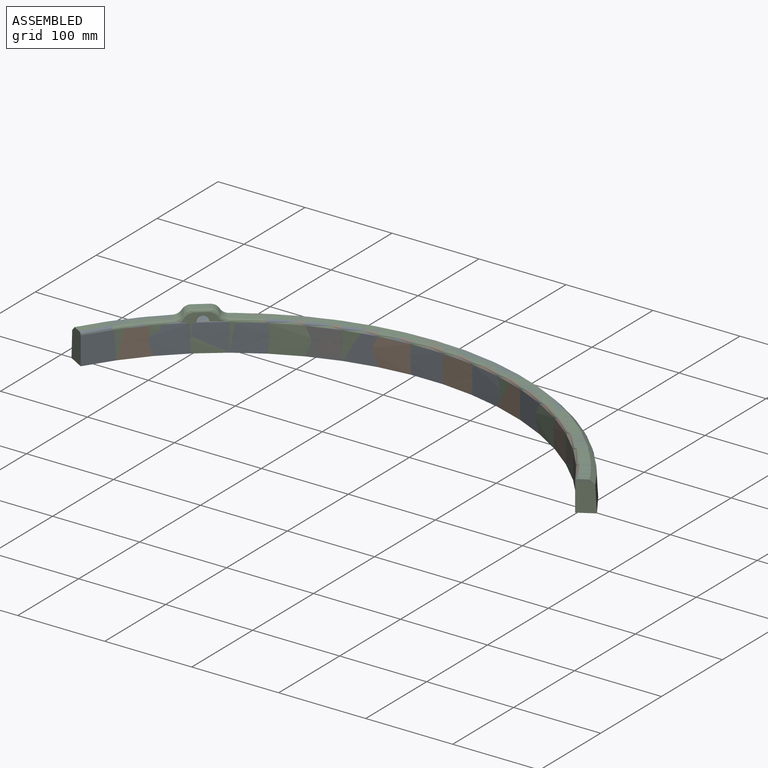
[diagram: assembled view]
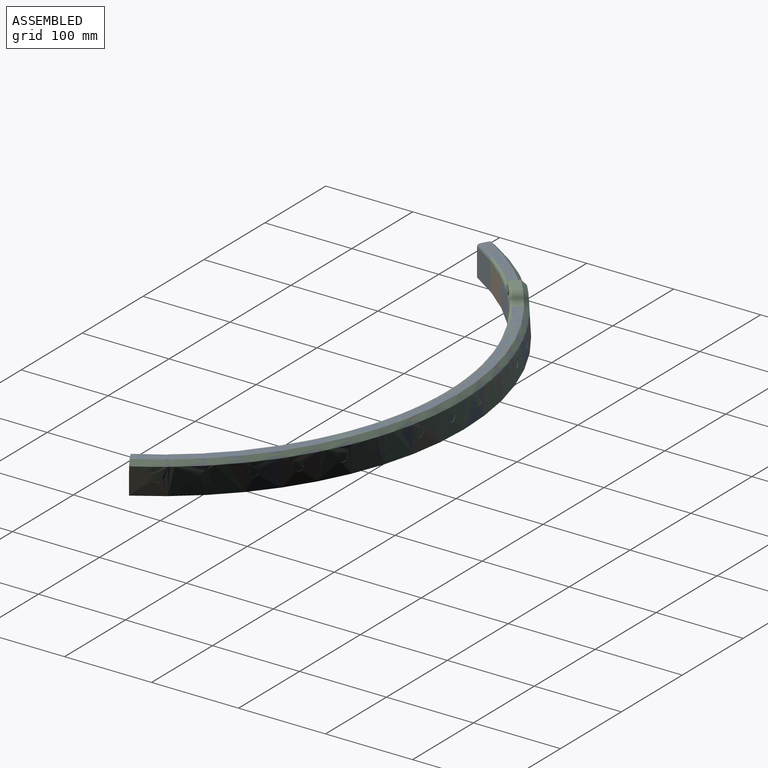
[diagram: assembled view, second angle]
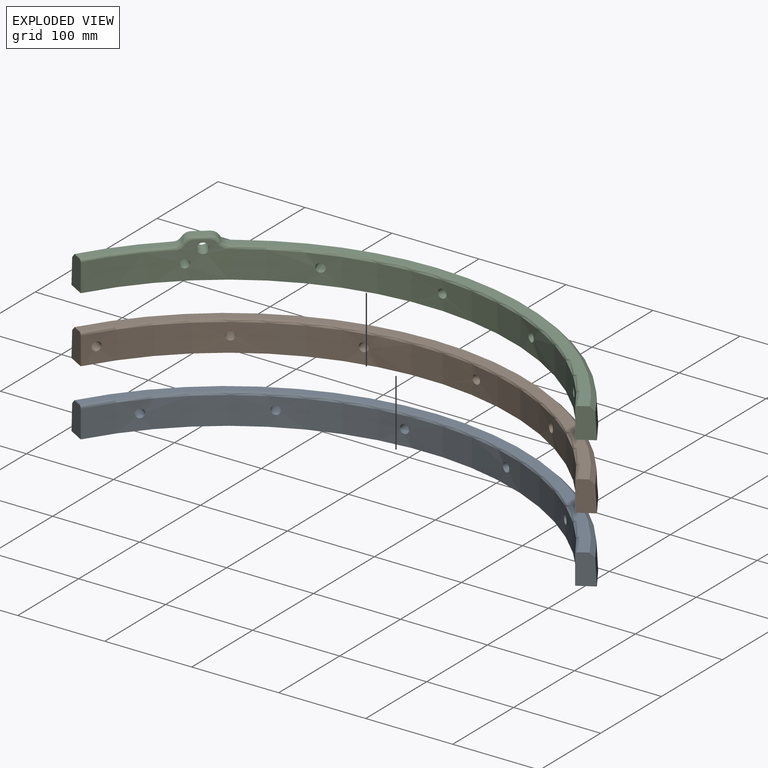
[diagram: exploded view]
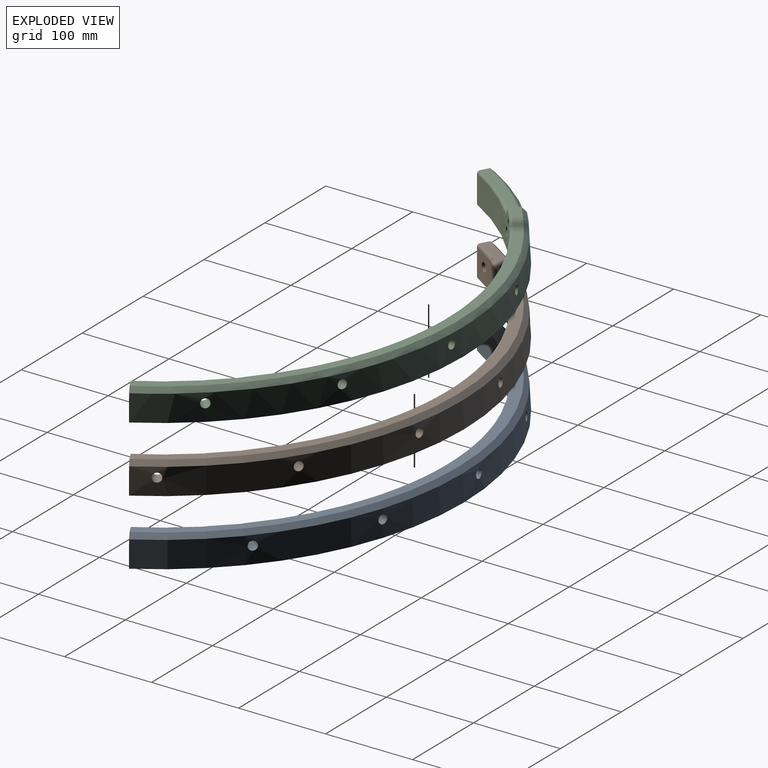
[diagram: exploded view, second angle]
ASSEMBLY  parts=3 mates=2
PART A: 36 faces, bbox 624.8x184.1x35 mm
  f0: cone r=1.73mm half-angle=60deg, axis (0,0,-1), area 41.9mm2, adj f35
  f1: cone r=347.2mm half-angle=3deg, axis (0,0,-1), area 21223.5mm2, adj f2,f10,f11,f12,f13,f14,f15,f17
  f2: plane 34.95x17.82mm, normal (-0.5,-0.87,0), area 672mm2, adj f1,f3,f11,f16,f27,f34
  f3: cylinder r=328.72mm len=568.35mm, axis (0,0,1), area 21525mm2, adj f2,f10,f12,f13,f14,f15,f17,f18
  f4: cylinder r=3.4mm len=20mm, axis (0,0,1), area 427.3mm2, adj f20,f34
  f5: cylinder r=4mm len=20mm, axis (0,0,1), area 502.7mm2, adj f21,f34
  f6: cylinder r=3.4mm len=20mm, axis (0,0,1), area 427.3mm2, adj f22,f34
  f7: cylinder r=3.4mm len=20mm, axis (0,0,1), area 427.3mm2, adj f23,f34
  f8: cylinder r=4mm len=20mm, axis (0,0,1), area 502.7mm2, adj f24,f34
  f9: cylinder r=4mm len=20mm, axis (0,0,1), area 502.7mm2, adj f25,f34
  f10: cylinder r=5.08mm len=20.71mm, axis (0.31,0.95,0.05), area 273.7mm2, adj f1,f3,f17,f32
  f11: cone r=1mm half-angle=45deg, axis (0,0,-1), area 5378.6mm2, adj f1,f2,f16,f33
  f12: cylinder r=5.08mm len=22.08mm, axis (-0.45,0.89,0.05), area 313.1mm2, adj f1,f3,f30,f31
  f13: cylinder r=5.08mm len=16.94mm, axis (-0.76,0.65,0.05), area 118.2mm2, adj f1,f3,f14,f29
  f14: cylinder r=5.08mm len=19.83mm, axis (-0.76,0.65,0.05), area 196.8mm2, adj f1,f3,f13,f29
  f15: cylinder r=5.08mm len=20.41mm, axis (-0.08,1,0.05), area 309.1mm2, adj f1,f3,f28
  f16: plane 592.16x175.74mm, normal (0,0,1), area 7564.5mm2, adj f2,f11,f27,f33
  f17: cylinder r=5.08mm len=20.73mm, axis (0.31,0.95,0.05), area 307.7mm2, adj f1,f3,f10,f32
  f18: cylinder r=5.08mm len=19.83mm, axis (0.65,0.76,0.05), area 196.8mm2, adj f1,f3,f19,f26
  f19: cylinder r=5.08mm len=16.94mm, axis (0.65,0.76,0.05), area 118.2mm2, adj f1,f3,f18,f26
  f20: cone r=1.73mm half-angle=60deg, axis (0,0,-1), area 41.9mm2, adj f4
  f21: cone r=1.73mm half-angle=60deg, axis (0,0,-1), area 58mm2, adj f5
  f22: cone r=1.73mm half-angle=60deg, axis (0,0,-1), area 41.9mm2, adj f6
  f23: cone r=1.73mm half-angle=60deg, axis (0,0,-1), area 41.9mm2, adj f7
  f24: cone r=1.73mm half-angle=60deg, axis (0,0,-1), area 58mm2, adj f8
  f25: cone r=1.73mm half-angle=60deg, axis (0,0,-1), area 58mm2, adj f9
  f26: cylinder r=5.08mm len=21.53mm, axis (0.65,0.76,0.05), area 310.4mm2, adj f1,f3,f18,f19
  f27: torus R=331.72mm, axis (0,0,-1), area 3245.7mm2, adj f2,f3,f16,f33
  f28: cylinder r=5.08mm len=20.67mm, axis (-0.08,1,0.05), area 315.8mm2, adj f1,f3,f15
  f29: cylinder r=5.08mm len=21.53mm, axis (-0.76,0.65,0.05), area 310.4mm2, adj f1,f3,f13,f14
  f30: cylinder r=5.08mm len=19.32mm, axis (-0.45,0.89,0.05), area 118.2mm2, adj f1,f3,f12,f31
  f31: cylinder r=5.08mm len=20.65mm, axis (-0.45,0.89,0.05), area 196.8mm2, adj f1,f3,f12,f30
  f32: cylinder r=5.08mm len=19.47mm, axis (0.31,0.95,0.05), area 39.7mm2, adj f1,f3,f10,f17
  f33: plane 34.95x17.82mm, normal (0.5,-0.87,0), area 672mm2, adj f1,f3,f11,f16,f27,f34
  f34: plane 603.99x184.07mm, normal (0,0,-1), area 14272.4mm2, adj f1,f2,f3,f4,f5,f6,f7,f8
  f35: cylinder r=3.4mm len=20mm, axis (0,0,1), area 427.3mm2, adj f0,f34
PART B: 37 faces, bbox 620.8x184.1x35 mm
  f0: cone r=1.73mm half-angle=60deg, axis (0,0,-1), area 41.9mm2, adj f36
  f1: cone r=347.2mm half-angle=3deg, axis (0,0,-1), area 21142.2mm2, adj f2,f9,f10,f11,f12,f13,f14,f15
  f2: plane 34.95x17.82mm, normal (-0.5,-0.87,0), area 672mm2, adj f1,f9,f19,f26,f34,f35
  f3: cylinder r=3.4mm len=20mm, axis (0,0,1), area 427.3mm2, adj f20,f35
  f4: cylinder r=4mm len=20mm, axis (0,0,1), area 502.7mm2, adj f21,f35
  f5: cylinder r=3.4mm len=20mm, axis (0,0,1), area 427.3mm2, adj f22,f35
  f6: cylinder r=3.4mm len=20mm, axis (0,0,1), area 427.3mm2, adj f23,f35
  f7: cylinder r=4mm len=20mm, axis (0,0,1), area 502.7mm2, adj f24,f35
  f8: cylinder r=4mm len=20mm, axis (0,0,1), area 502.7mm2, adj f25,f35
  f9: cone r=1mm half-angle=45deg, axis (0,0,-1), area 5378.6mm2, adj f1,f2,f19,f33
  f10: cylinder r=5.08mm len=21.18mm, axis (0.54,0.84,0.05), area 234.9mm2, adj f1,f11,f32,f34
  f11: cylinder r=5.08mm len=17.56mm, axis (0.54,0.84,0.05), area 78.7mm2, adj f1,f10,f32,f34
  f12: cylinder r=5.08mm len=21.15mm, axis (0.18,0.98,0.05), area 313.1mm2, adj f1,f31,f34
  f13: cylinder r=5.08mm len=20.71mm, axis (-0.21,0.98,0.05), area 234.2mm2, adj f1,f14,f30,f34
  f14: cylinder r=5.08mm len=20.77mm, axis (-0.21,0.98,0.05), area 313mm2, adj f1,f13,f30,f34
  f15: cylinder r=5.08mm len=22.13mm, axis (-0.57,0.82,0.05), area 315.8mm2, adj f1,f29,f34
  f16: cylinder r=5.08mm len=21.18mm, axis (-0.84,0.54,0.05), area 234.9mm2, adj f1,f17,f28,f34
  f17: cylinder r=5.08mm len=17.56mm, axis (-0.84,0.54,0.05), area 78.7mm2, adj f1,f16,f28,f34
  f18: cylinder r=5.08mm len=21.94mm, axis (0.82,0.57,0.05), area 313.4mm2, adj f1,f27,f34
  f19: plane 592.16x175.74mm, normal (0,0,1), area 7564.5mm2, adj f2,f9,f26,f33
  f20: cone r=1.73mm half-angle=60deg, axis (0,0,-1), area 41.9mm2, adj f3
  f21: cone r=1.73mm half-angle=60deg, axis (0,0,-1), area 58mm2, adj f4
  f22: cone r=1.73mm half-angle=60deg, axis (0,0,-1), area 41.9mm2, adj f5
  f23: cone r=1.73mm half-angle=60deg, axis (0,0,-1), area 41.9mm2, adj f6
  f24: cone r=1.73mm half-angle=60deg, axis (0,0,-1), area 58mm2, adj f7
  f25: cone r=1.73mm half-angle=60deg, axis (0,0,-1), area 58mm2, adj f8
  f26: torus R=331.72mm, axis (0,0,-1), area 3245.7mm2, adj f2,f19,f33,f34
  f27: bspline ~21.93x19.48mm, area 313.3mm2, adj f1,f18,f34
  f28: cylinder r=5.08mm len=22.01mm, axis (-0.84,0.54,0.05), area 310.4mm2, adj f1,f16,f17,f34
  f29: bspline ~21.93x19.48mm, area 310.3mm2, adj f1,f15,f34
  f30: cylinder r=5.08mm len=20.09mm, axis (-0.21,0.98,0.05), area 79.2mm2, adj f1,f13,f14,f34
  f31: cylinder r=5.08mm len=21.41mm, axis (0.18,0.98,0.05), area 315.8mm2, adj f1,f12,f34
  f32: cylinder r=5.08mm len=22.01mm, axis (0.54,0.84,0.05), area 308.8mm2, adj f1,f10,f11,f34
  f33: plane 34.95x17.82mm, normal (0.5,-0.87,0), area 672mm2, adj f1,f9,f19,f26,f34,f35
  f34: cylinder r=328.72mm len=568.35mm, axis (0,0,1), area 21446.6mm2, adj f2,f10,f11,f12,f13,f14,f15,f16
  f35: plane 603.99x184.07mm, normal (0,0,-1), area 14272.4mm2, adj f1,f2,f3,f4,f5,f6,f7,f8
  f36: cylinder r=3.4mm len=20mm, axis (0,0,1), area 427.3mm2, adj f0,f35
PART C: 58 faces, bbox 614.4x190.4x45 mm
  f0: cone r=1.73mm half-angle=60deg, axis (0,0,-1), area 41.9mm2, adj f57
  f1: plane 34.95x17.82mm, normal (-0.5,-0.87,0), area 672mm2, adj f2,f9,f52,f53,f55,f56
  f2: cone r=347.2mm half-angle=3deg, axis (0,0,-1), area 21445.1mm2, adj f1,f10,f11,f12,f13,f14,f15,f16
  f3: cylinder r=3.4mm len=20mm, axis (0,0,1), area 427.3mm2, adj f25,f56
  f4: cylinder r=4mm len=20mm, axis (0,0,1), area 502.7mm2, adj f26,f56
  f5: cylinder r=3.4mm len=20mm, axis (0,0,1), area 427.3mm2, adj f27,f56
  f6: cylinder r=3.4mm len=20mm, axis (0,0,1), area 427.3mm2, adj f28,f56
  f7: cylinder r=4mm len=20mm, axis (0,0,1), area 502.7mm2, adj f29,f56
  f8: cylinder r=4mm len=20mm, axis (0,0,1), area 502.7mm2, adj f30,f56
  f9: plane 80.98x66.79mm, normal (0,0,1), area 1019.7mm2, adj f1,f42,f52,f53
  f10: bspline ~12.77x10.43mm, area 98.4mm2, adj f2,f11,f42,f53
  f11: bspline ~9.52x7.33mm, area 56.5mm2, adj f2,f10,f12,f31
  f12: bspline ~17.94x16.02mm, area 139mm2, adj f2,f11,f13,f32,f50,f51
  f13: bspline ~10.12x7.41mm, area 56.4mm2, adj f2,f12,f14,f33
  f14: bspline ~13.71x10.33mm, area 97.9mm2, adj f2,f13,f15,f34
  f15: bspline ~499.06x175.86mm, area 4252.3mm2, adj f2,f14,f35,f54
  f16: cylinder r=5.08mm len=21.15mm, axis (0.43,0.9,0.05), area 196.9mm2, adj f2,f17,f49,f55
  f17: extruded ~20.53x14.89mm, area 194.4mm2, adj f2,f16,f18,f55
  f18: cylinder r=5.08mm len=19.28mm, axis (0.43,0.9,0.05), area 116.7mm2, adj f2,f17,f49,f55
  f19: cylinder r=5.08mm len=19.69mm, axis (0.05,1,0.05), area 77.9mm2, adj f2,f20,f48,f55
  f20: cylinder r=5.08mm len=20.23mm, axis (0.05,1,0.05), area 233.6mm2, adj f2,f19,f48,f55
  f21: cylinder r=5.08mm len=16.07mm, axis (0.74,0.67,0.05), area 39.7mm2, adj f2,f22,f47,f55
  f22: cylinder r=5.08mm len=17.95mm, axis (0.74,0.67,0.05), area 273.7mm2, adj f2,f21,f47,f55
  f23: cylinder r=5.08mm len=17.1mm, axis (-0.67,0.74,0.05), area 79.2mm2, adj f2,f45,f46,f55
  f24: cylinder r=5.08mm len=19.53mm, axis (-0.33,0.94,0.05), area 118.2mm2, adj f2,f43,f44,f55
  f25: cone r=1.73mm half-angle=60deg, axis (0,0,-1), area 41.9mm2, adj f3
  f26: cone r=1.73mm half-angle=60deg, axis (0,0,-1), area 58mm2, adj f4
  f27: cone r=1.73mm half-angle=60deg, axis (0,0,-1), area 41.9mm2, adj f5
  f28: cone r=1.73mm half-angle=60deg, axis (0,0,-1), area 41.9mm2, adj f6
  f29: cone r=1.73mm half-angle=60deg, axis (0,0,-1), area 58mm2, adj f7
  f30: cone r=1.73mm half-angle=60deg, axis (0,0,-1), area 58mm2, adj f8
  f31: cylinder r=10mm len=13.66mm, axis (-0.67,0.74,0), area 108.5mm2, adj f11,f32,f41,f42
  f32: plane 20.36x19.32mm, normal (0,0,1), area 183.5mm2, adj f12,f31,f33,f40
  f33: cylinder r=10mm len=13.71mm, axis (-0.59,0.81,0), area 108.7mm2, adj f13,f32,f34,f39
  f34: cylinder r=10mm len=13.79mm, axis (0.59,-0.81,0), area 111.4mm2, adj f14,f33,f35,f38
  f35: plane 491.42x175.92mm, normal (0,0,1), area 5979.4mm2, adj f15,f34,f37,f54
  f36: bspline ~10.27x8.07mm, area 54.6mm2, adj f41,f42,f52,f55
  f37: torus R=331.72mm, axis (0,0,-1), area 2565.1mm2, adj f35,f38,f54,f55
  f38: bspline ~9.06x8.98mm, area 54.4mm2, adj f34,f37,f39,f55
  f39: bspline ~7.58x7.57mm, area 43.6mm2, adj f33,f38,f40,f55
  f40: torus R=331.72mm, axis (0,0,1), area 81.6mm2, adj f32,f39,f41,f55
  f41: bspline ~8.45x6.83mm, area 43.7mm2, adj f31,f36,f40,f55
  f42: cylinder r=10mm len=13.78mm, axis (-0.67,0.74,0), area 111.3mm2, adj f9,f10,f31,f36
  f43: extruded ~21.27x13.16mm, area 196.8mm2, adj f2,f24,f44,f55
  f44: cylinder r=5.08mm len=21.88mm, axis (-0.33,0.94,0.05), area 313.1mm2, adj f2,f24,f43,f55
  f45: cylinder r=5.08mm len=18.36mm, axis (-0.67,0.74,0.05), area 313mm2, adj f2,f23,f46,f55
  f46: cylinder r=5.08mm len=18.32mm, axis (-0.67,0.74,0.05), area 234.2mm2, adj f2,f23,f45,f55
  f47: cylinder r=5.08mm len=18.36mm, axis (0.74,0.67,0.05), area 313mm2, adj f2,f21,f22,f55
  f48: cylinder r=5.08mm len=20.21mm, axis (0.05,1,0.05), area 313.1mm2, adj f2,f19,f20,f55
  f49: cylinder r=5.08mm len=19.04mm, axis (0.43,0.9,0.05), area 118.1mm2, adj f2,f16,f18,f55
  f50: cylinder r=6mm len=18.88mm, axis (-0.63,0.78,0.05), area 354.9mm2, adj f2,f12,f51,f55
  f51: bspline ~18.89x16.9mm, area 354.5mm2, adj f2,f12,f50,f55
  f52: torus R=331.72mm, axis (0,0,-1), area 436.7mm2, adj f1,f9,f36,f55
  f53: bspline ~80.31x64.7mm, area 720.5mm2, adj f1,f2,f9,f10
  f54: plane 34.95x17.82mm, normal (0.5,-0.87,0), area 672mm2, adj f2,f15,f35,f37,f55,f56
  f55: cylinder r=328.72mm len=568.35mm, axis (0,0,1), area 21736.5mm2, adj f1,f16,f17,f18,f19,f20,f21,f22
  f56: plane 603.99x184.07mm, normal (0,0,-1), area 14272.4mm2, adj f1,f2,f3,f4,f5,f6,f7,f8
  f57: cylinder r=3.4mm len=20mm, axis (0,0,1), area 427.3mm2, adj f0,f56
PLACE A t=(219.43,-326.5,-311.84)mm
PLACE B t=(219.43,-326.5,-311.84)mm
PLACE C t=(219.43,-326.5,-311.84)mm
MATE fastened A.f5 <-> B.f4  axis (0,0,-1) through (216.47,12.2,-311.84)mm
MATE fastened B.f4 <-> C.f4  axis (0,0,-1) through (216.47,12.2,-311.84)mm
